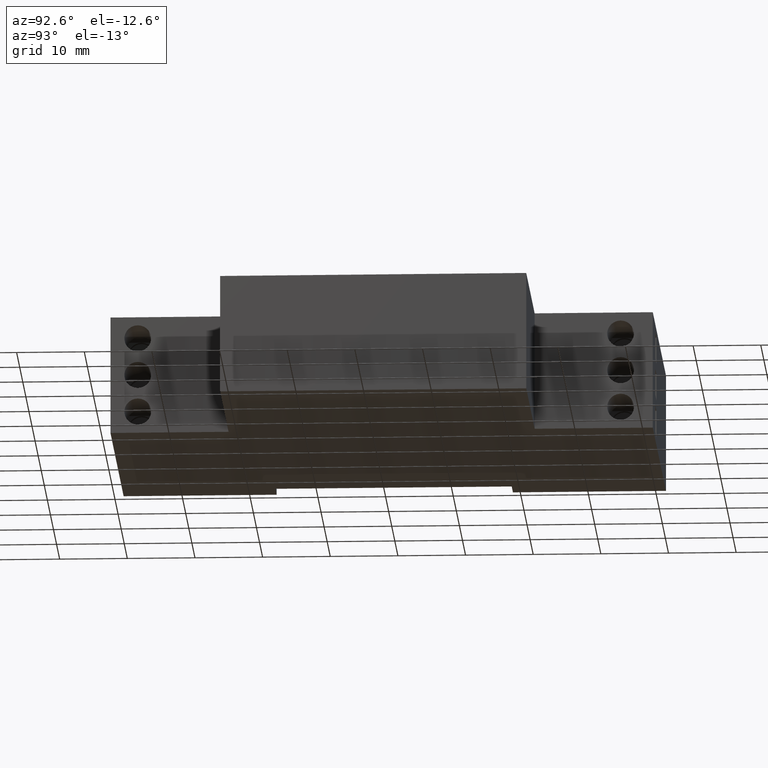
[diagram: clean part render]
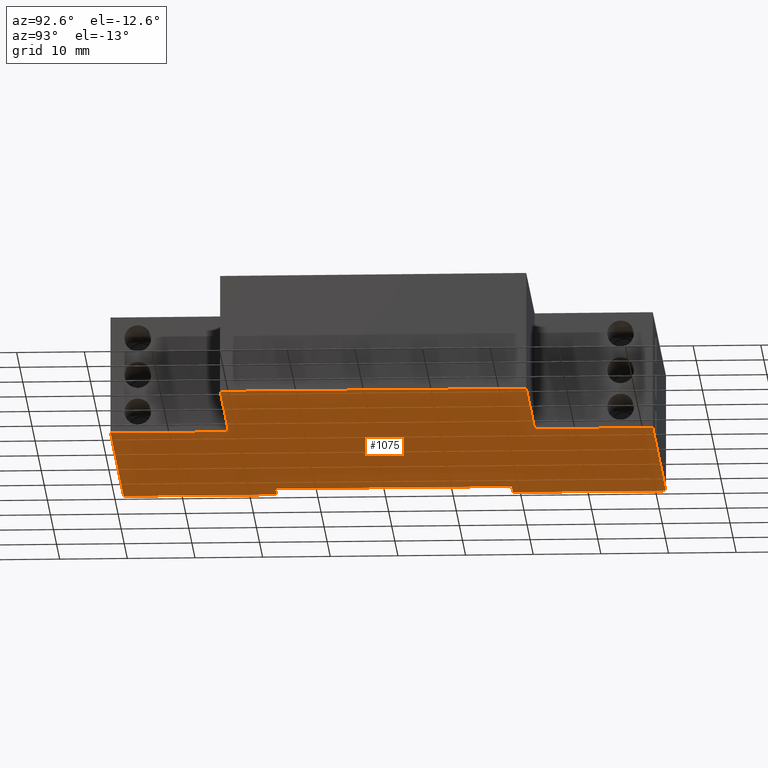
[diagram: same view with one face highlighted and labeled with its STEP entity id]
A machine part, auxiliary view. The second image highlights one B-rep face of the part: STEP entity #1075.
In plain terms, the highlighted planar face has unit normal (0, 0, 1).
Its self-contained STEP definition (entity closure, byte-faithful):
#32=DIRECTION('',(0.E0,1.E0,0.E0));
#33=VECTOR('',#32,6.875E-1);
#34=CARTESIAN_POINT('',(6.969565682097E-1,-6.398456133946E-1,0.E0));
#35=LINE('',#34,#33);
#118=DIRECTION('',(-1.E0,0.E0,0.E0));
#119=VECTOR('',#118,1.0781E0);
#120=CARTESIAN_POINT('',(1.775056568210E0,-6.398456133946E-1,0.E0));
#121=LINE('',#120,#119);
#126=DIRECTION('',(-1.E0,0.E0,0.E0));
#127=VECTOR('',#126,1.6875E0);
#128=CARTESIAN_POINT('',(6.969565682097E-1,4.765438660540E-2,0.E0));
#129=LINE('',#128,#127);
#134=DIRECTION('',(0.E0,-1.E0,0.E0));
#135=VECTOR('',#134,8.90625E-1);
#136=CARTESIAN_POINT('',(-9.905434317903E-1,4.765438660540E-2,0.E0));
#137=LINE('',#136,#135);
#142=DIRECTION('',(1.E0,0.E0,0.E0));
#143=VECTOR('',#142,1.575E-1);
#144=CARTESIAN_POINT('',(-9.905434317903E-1,-8.429706133946E-1,0.E0));
#145=LINE('',#144,#143);
#150=DIRECTION('',(0.E0,-1.E0,0.E0));
#151=VECTOR('',#150,1.375E0);
#152=CARTESIAN_POINT('',(-8.330434317903E-1,-8.429706133946E-1,0.E0));
#153=LINE('',#152,#151);
#158=DIRECTION('',(-1.E0,0.E0,0.E0));
#159=VECTOR('',#158,1.575E-1);
#160=CARTESIAN_POINT('',(-8.330434317903E-1,-2.217970613395E0,0.E0));
#161=LINE('',#160,#159);
#166=DIRECTION('',(0.E0,-1.E0,0.E0));
#167=VECTOR('',#166,8.90625E-1);
#168=CARTESIAN_POINT('',(-9.905434317903E-1,-2.217970613395E0,0.E0));
#169=LINE('',#168,#167);
#174=DIRECTION('',(1.E0,0.E0,0.E0));
#175=VECTOR('',#174,1.6875E0);
#176=CARTESIAN_POINT('',(-9.905434317903E-1,-3.108595613395E0,0.E0));
#177=LINE('',#176,#175);
#182=DIRECTION('',(0.E0,1.E0,0.E0));
#183=VECTOR('',#182,6.875E-1);
#184=CARTESIAN_POINT('',(6.969565682097E-1,-3.108595613395E0,0.E0));
#185=LINE('',#184,#183);
#220=DIRECTION('',(1.E0,0.E0,0.E0));
#221=VECTOR('',#220,1.0781E0);
#222=CARTESIAN_POINT('',(6.969565682097E-1,-2.421095613395E0,0.E0));
#223=LINE('',#222,#221);
#228=DIRECTION('',(0.E0,1.E0,0.E0));
#229=VECTOR('',#228,1.78125E0);
#230=CARTESIAN_POINT('',(1.775056568210E0,-2.421095613395E0,0.E0));
#231=LINE('',#230,#229);
#870=CARTESIAN_POINT('',(6.969565682097E-1,-6.398456133946E-1,0.E0));
#871=VERTEX_POINT('',#870);
#872=CARTESIAN_POINT('',(6.969565682097E-1,4.765438660540E-2,0.E0));
#873=VERTEX_POINT('',#872);
#876=CARTESIAN_POINT('',(1.775056568210E0,-6.398456133946E-1,0.E0));
#877=VERTEX_POINT('',#876);
#880=CARTESIAN_POINT('',(1.775056568210E0,-2.421095613395E0,0.E0));
#881=VERTEX_POINT('',#880);
#884=CARTESIAN_POINT('',(6.969565682097E-1,-2.421095613395E0,0.E0));
#885=VERTEX_POINT('',#884);
#888=CARTESIAN_POINT('',(6.969565682097E-1,-3.108595613395E0,0.E0));
#889=VERTEX_POINT('',#888);
#892=CARTESIAN_POINT('',(-9.905434317903E-1,-3.108595613395E0,0.E0));
#893=VERTEX_POINT('',#892);
#896=CARTESIAN_POINT('',(-9.905434317903E-1,-2.217970613395E0,0.E0));
#897=VERTEX_POINT('',#896);
#900=CARTESIAN_POINT('',(-8.330434317903E-1,-2.217970613395E0,0.E0));
#901=VERTEX_POINT('',#900);
#904=CARTESIAN_POINT('',(-8.330434317903E-1,-8.429706133946E-1,0.E0));
#905=VERTEX_POINT('',#904);
#908=CARTESIAN_POINT('',(-9.905434317903E-1,-8.429706133946E-1,0.E0));
#909=VERTEX_POINT('',#908);
#912=CARTESIAN_POINT('',(-9.905434317903E-1,4.765438660540E-2,0.E0));
#913=VERTEX_POINT('',#912);
#1046=CARTESIAN_POINT('',(2.543634751981E-1,-1.530470613395E0,0.E0));
#1047=DIRECTION('',(0.E0,0.E0,1.E0));
#1048=DIRECTION('',(1.E0,0.E0,0.E0));
#1049=AXIS2_PLACEMENT_3D('',#1046,#1047,#1048);
#1050=PLANE('',#1049);
#1052=ORIENTED_EDGE('',*,*,#1051,.T.);
#1054=ORIENTED_EDGE('',*,*,#1053,.T.);
#1056=ORIENTED_EDGE('',*,*,#1055,.T.);
#1058=ORIENTED_EDGE('',*,*,#1057,.T.);
#1060=ORIENTED_EDGE('',*,*,#1059,.T.);
#1062=ORIENTED_EDGE('',*,*,#1061,.T.);
#1064=ORIENTED_EDGE('',*,*,#1063,.T.);
#1066=ORIENTED_EDGE('',*,*,#1065,.T.);
#1068=ORIENTED_EDGE('',*,*,#1067,.T.);
#1070=ORIENTED_EDGE('',*,*,#1069,.T.);
#1071=ORIENTED_EDGE('',*,*,#1039,.T.);
#1072=ORIENTED_EDGE('',*,*,#978,.T.);
#1073=EDGE_LOOP('',(#1052,#1054,#1056,#1058,#1060,#1062,#1064,#1066,#1068,#1070,
#1071,#1072));
#1074=FACE_OUTER_BOUND('',#1073,.F.);
#1075=ADVANCED_FACE('',(#1074),#1050,.F.);
#978=EDGE_CURVE('',#871,#873,#35,.T.);
#1039=EDGE_CURVE('',#877,#871,#121,.T.);
#1051=EDGE_CURVE('',#873,#913,#129,.T.);
#1053=EDGE_CURVE('',#913,#909,#137,.T.);
#1055=EDGE_CURVE('',#909,#905,#145,.T.);
#1057=EDGE_CURVE('',#905,#901,#153,.T.);
#1059=EDGE_CURVE('',#901,#897,#161,.T.);
#1061=EDGE_CURVE('',#897,#893,#169,.T.);
#1063=EDGE_CURVE('',#893,#889,#177,.T.);
#1065=EDGE_CURVE('',#889,#885,#185,.T.);
#1067=EDGE_CURVE('',#885,#881,#223,.T.);
#1069=EDGE_CURVE('',#881,#877,#231,.T.);